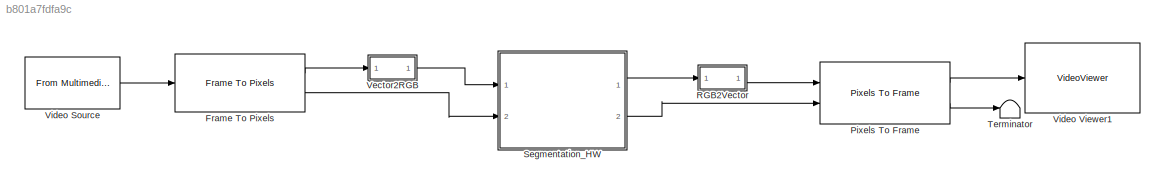
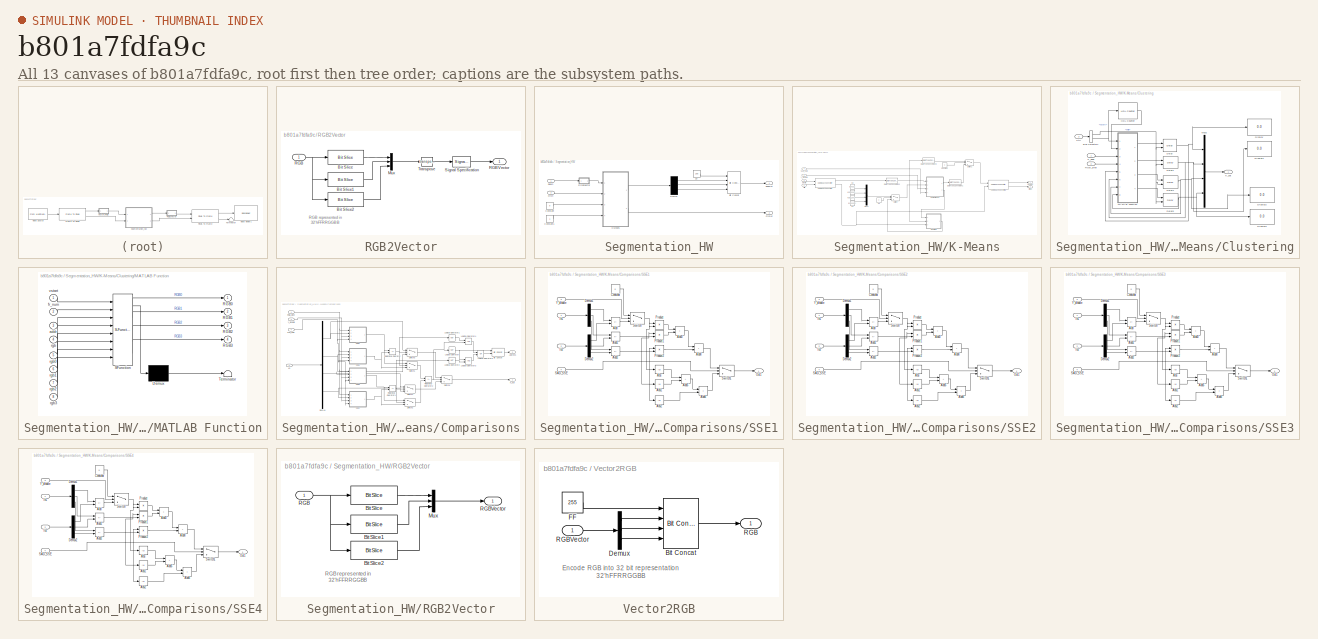
[diagram: thumbnail index - all 13 canvases of the model, root first then tree order]
MODEL slx_b801a7fdfa9c
KIND model
CONFIG AbsTol = auto
CONFIG EnableMultiTasking = off
CONFIG FixedStep = auto
CONFIG InitFcn = Ts = 1e-3;\nTs_240p = 402*324*Ts;\nTs_480p = 525*800*Ts;\n\n
CONFIG MaxStep = auto
CONFIG MinStep = auto
CONFIG RelTol = 1e-3
CONFIG SampleTimeConstraint = Unconstrained
CONFIG SolverName = FixedStepDiscrete
CONFIG StartTime = 0.0
CONFIG StopTime = 1000
BLOCK [Reference] Frame To Pixels  REF=visionhdlio/Frame To Pixels
  Ports = [1, 2]
  SourceBlock = visionhdlio/Frame To Pixels
  SourceProductBaseCode = VT
  SourceType = Frame To Pixels
BLOCK [Reference] Pixels To Frame  REF=visionhdlio/Pixels To Frame
  Ports = [2, 2]
  SourceBlock = visionhdlio/Pixels To Frame
  SourceProductBaseCode = VT
  SourceType = Pixels To Frame
BLOCK [SubSystem] RGB2Vector
  Ports = [1, 1]
  RequestExecContextInheritance = off
  ShowPortLabels = none
BLOCK [Reference] RGB2Vector/Bit Slice  REF=hdlsllib/Logic and Bit
Operations/Bit Slice
  Ports = [1, 1]
  SourceBlock = hdlsllib/Logic and Bit\nOperations/Bit Slice
  SourceProductBaseCode = SL
  SourceType = Bit Slice
BLOCK [Reference] RGB2Vector/Bit Slice1  REF=hdlsllib/Logic and Bit
Operations/Bit Slice
  Ports = [1, 1]
  SourceBlock = hdlsllib/Logic and Bit\nOperations/Bit Slice
  SourceProductBaseCode = SL
  SourceType = Bit Slice
BLOCK [Reference] RGB2Vector/Bit Slice2  REF=hdlsllib/Logic and Bit
Operations/Bit Slice
  Ports = [1, 1]
  SourceBlock = hdlsllib/Logic and Bit\nOperations/Bit Slice
  SourceProductBaseCode = SL
  SourceType = Bit Slice
BLOCK [Mux] RGB2Vector/Mux
  DisplayOption = bar
  Inputs = 3
  Ports = [3, 1]
BLOCK [Inport] RGB2Vector/RGB
BLOCK [Outport] RGB2Vector/RGBVector
  VectorParamsAs1DForOutWhenUnconnected = off
BLOCK [SignalSpecification] RGB2Vector/Signal Specification
  SignalType = real
BLOCK [Math] RGB2Vector/Transpose
  Operator = transpose
  Ports = [1, 1]
  SignedPower = on
BLOCK [SubSystem] Segmentation_HW
  Ports = [2, 2]
  RequestExecContextInheritance = off
  TreatAsAtomicUnit = on
BLOCK [Reference] Segmentation_HW/Bit Concat  REF=hdlsllib/Logic and Bit
Operations/Bit Concat
  Ports = [4, 1]
  SourceBlock = hdlsllib/Logic and Bit\nOperations/Bit Concat
  SourceProductBaseCode = SL
  SourceType = Bit Concat
BLOCK [Constant] Segmentation_HW/Constant
  OutDataTypeStr = uint8
  Value = 0
BLOCK [Constant] Segmentation_HW/Constant1
  OutDataTypeStr = uint8
BLOCK [Demux] Segmentation_HW/Demux
  Outputs = 3
  Ports = [1, 3]
BLOCK [Constant] Segmentation_HW/FF
  OutDataTypeStr = uint8
  SampleTime = -1
  Value = 255
BLOCK [SubSystem] Segmentation_HW/K-Means
  Ports = [4, 2]
  RequestExecContextInheritance = off
  TreatAsAtomicUnit = on
BLOCK [SubSystem] Segmentation_HW/K-Means/Clustering
  Ports = [3, 1]
  RequestExecContextInheritance = off
BLOCK [BusSelector] Segmentation_HW/K-Means/Clustering/Bus Selector1
  OutputSignals = valid,vStart
  Ports = [1, 2]
BLOCK [Inport] Segmentation_HW/K-Means/Clustering/Ctrl
  Port = 3
BLOCK [Delay] Segmentation_HW/K-Means/Clustering/Delay
  DelayLength = 1
  InitialCondition = 0
  InputPortMap = u0,e6
  Ports = [2, 1]
  ShowEnablePort = on
BLOCK [Delay] Segmentation_HW/K-Means/Clustering/Delay1
  DelayLength = 1
  InitialCondition = 0
  InputPortMap = u0,e6
  Ports = [2, 1]
  ShowEnablePort = on
BLOCK [Delay] Segmentation_HW/K-Means/Clustering/Delay4
  DelayLength = 1
  InitialCondition = 0
  InputPortMap = u0,e6
  Ports = [2, 1]
  ShowEnablePort = on
BLOCK [Delay] Segmentation_HW/K-Means/Clustering/Delay5
  DelayLength = 1
  InitialCondition = 0
  InputPortMap = u0,e6
  Ports = [2, 1]
  ShowEnablePort = on
BLOCK [Display] Segmentation_HW/K-Means/Clustering/Display
  Decimation = 1
  Ports = [1]
BLOCK [Display] Segmentation_HW/K-Means/Clustering/Display1
  Decimation = 1
  Ports = [1]
BLOCK [Display] Segmentation_HW/K-Means/Clustering/Display2
  Decimation = 1
  Ports = [1]
BLOCK [Display] Segmentation_HW/K-Means/Clustering/Display3
  Decimation = 1
  Ports = [1]
BLOCK [Reference] Segmentation_HW/K-Means/Clustering/HDL Counter  REF=hdlsllib/Sources/HDL Counter
  Ports = [1, 1]
  SourceBlock = hdlsllib/Sources/HDL Counter
  SourceProductBaseCode = SL
  SourceType = HDL Counter
BLOCK [Inport] Segmentation_HW/K-Means/Clustering/K_addr
BLOCK [Outport] Segmentation_HW/K-Means/Clustering/K_out
  VectorParamsAs1DForOutWhenUnconnected = off
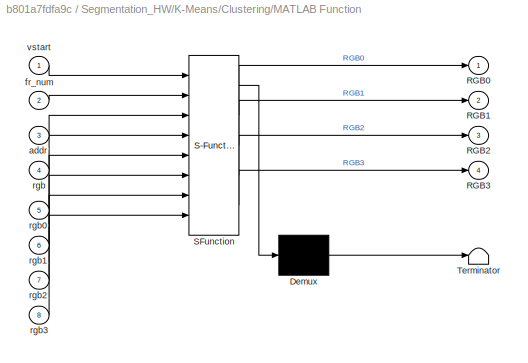
BLOCK [SubSystem] Segmentation_HW/K-Means/Clustering/MATLAB Function
  ErrorFcn = Stateflow.Translate.translate
  PermitHierarchicalResolution = ExplicitOnly
  Ports = [8, 4]
  RequestExecContextInheritance = off
  SFBlockType = MATLAB Function
  TreatAsAtomicUnit = on
BLOCK [Demux] Segmentation_HW/K-Means/Clustering/MATLAB Function/ Demux 
  Outputs = 1
  Ports = [1, 1]
BLOCK [S-Function] Segmentation_HW/K-Means/Clustering/MATLAB Function/ SFunction 
  EnableBusSupport = on
  FunctionName = sf_sfun
  PortCounts = [8 5]
  Ports = [8, 5]
  SFcnIsStateOwnerBlock = off
  SFunctionDeploymentMode = off
  Tag = Stateflow S-Function 1
BLOCK [Terminator] Segmentation_HW/K-Means/Clustering/MATLAB Function/ Terminator 
BLOCK [Outport] Segmentation_HW/K-Means/Clustering/MATLAB Function/RGB0
  VectorParamsAs1DForOutWhenUnconnected = off
BLOCK [Outport] Segmentation_HW/K-Means/Clustering/MATLAB Function/RGB1
  Port = 2
  VectorParamsAs1DForOutWhenUnconnected = off
BLOCK [Outport] Segmentation_HW/K-Means/Clustering/MATLAB Function/RGB2
  Port = 3
  VectorParamsAs1DForOutWhenUnconnected = off
BLOCK [Outport] Segmentation_HW/K-Means/Clustering/MATLAB Function/RGB3
  Port = 4
  VectorParamsAs1DForOutWhenUnconnected = off
BLOCK [Inport] Segmentation_HW/K-Means/Clustering/MATLAB Function/addr
  Port = 3
BLOCK [Inport] Segmentation_HW/K-Means/Clustering/MATLAB Function/fr_num
  Port = 2
BLOCK [Inport] Segmentation_HW/K-Means/Clustering/MATLAB Function/rgb
  Port = 4
BLOCK [Inport] Segmentation_HW/K-Means/Clustering/MATLAB Function/rgb0
  Port = 5
BLOCK [Inport] Segmentation_HW/K-Means/Clustering/MATLAB Function/rgb1
  Port = 6
BLOCK [Inport] Segmentation_HW/K-Means/Clustering/MATLAB Function/rgb2
  Port = 7
BLOCK [Inport] Segmentation_HW/K-Means/Clustering/MATLAB Function/rgb3
  Port = 8
BLOCK [Inport] Segmentation_HW/K-Means/Clustering/MATLAB Function/vstart
BLOCK [Mux] Segmentation_HW/K-Means/Clustering/Mux2
  DisplayOption = bar
  Ports = [4, 1]
BLOCK [Inport] Segmentation_HW/K-Means/Clustering/RGB_pixel
  Port = 2
BLOCK [Reference] Segmentation_HW/K-Means/Color Space Converter  REF=visionhdlconversions/Color Space Converter
  Ports = [2, 2]
  SourceBlock = visionhdlconversions/Color Space Converter
  SourceProductBaseCode = VT
  SourceType = Color Space Converter
BLOCK [Reference] Segmentation_HW/K-Means/Color Space Converter1  REF=visionhdlconversions/Color Space Converter
  Ports = [2, 2]
  SourceBlock = visionhdlconversions/Color Space Converter
  SourceProductBaseCode = VT
  SourceType = Color Space Converter
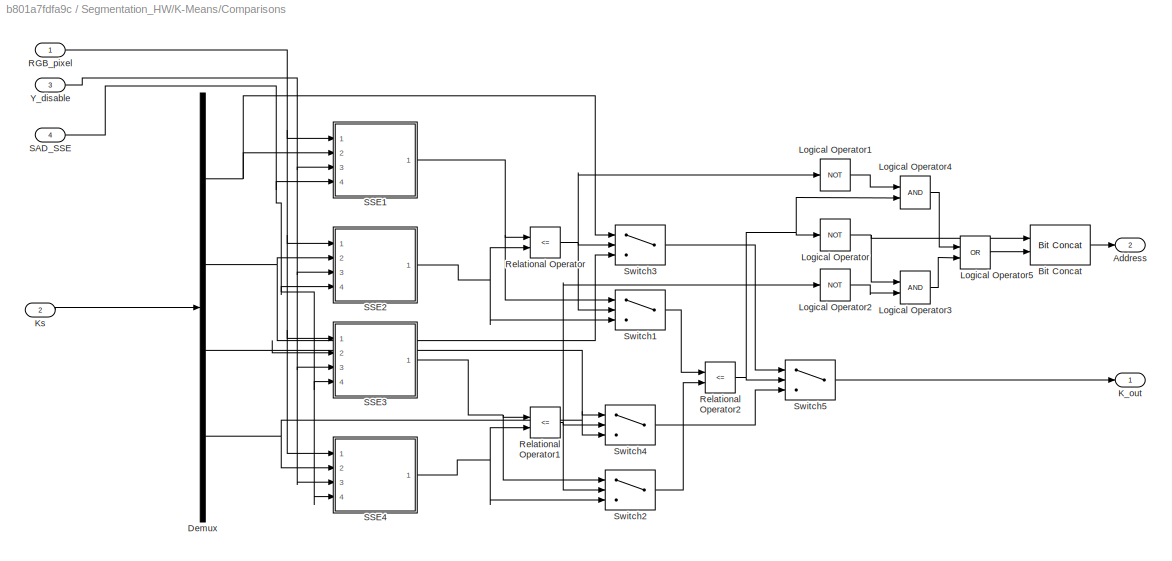
BLOCK [SubSystem] Segmentation_HW/K-Means/Comparisons
  Ports = [4, 2]
  RequestExecContextInheritance = off
BLOCK [Outport] Segmentation_HW/K-Means/Comparisons/Address
  Port = 2
  VectorParamsAs1DForOutWhenUnconnected = off
BLOCK [Reference] Segmentation_HW/K-Means/Comparisons/Bit Concat  REF=hdlsllib/Logic and Bit
Operations/Bit Concat
  Ports = [2, 1]
  SourceBlock = hdlsllib/Logic and Bit\nOperations/Bit Concat
  SourceProductBaseCode = SL
  SourceType = Bit Concat
BLOCK [Demux] Segmentation_HW/K-Means/Comparisons/Demux
  Ports = [1, 4]
BLOCK [Outport] Segmentation_HW/K-Means/Comparisons/K_out
  VectorParamsAs1DForOutWhenUnconnected = off
BLOCK [Inport] Segmentation_HW/K-Means/Comparisons/Ks
  Port = 2
BLOCK [Logic] Segmentation_HW/K-Means/Comparisons/Logical Operator
  AllPortsSameDT = off
  Operator = NOT
  OutDataTypeStr = boolean
  Ports = [1, 1]
BLOCK [Logic] Segmentation_HW/K-Means/Comparisons/Logical Operator1
  AllPortsSameDT = off
  Operator = NOT
  OutDataTypeStr = boolean
  Ports = [1, 1]
BLOCK [Logic] Segmentation_HW/K-Means/Comparisons/Logical Operator2
  AllPortsSameDT = off
  Operator = NOT
  OutDataTypeStr = boolean
  Ports = [1, 1]
BLOCK [Logic] Segmentation_HW/K-Means/Comparisons/Logical Operator3
  AllPortsSameDT = off
  OutDataTypeStr = boolean
  Ports = [2, 1]
BLOCK [Logic] Segmentation_HW/K-Means/Comparisons/Logical Operator4
  AllPortsSameDT = off
  OutDataTypeStr = boolean
  Ports = [2, 1]
BLOCK [Logic] Segmentation_HW/K-Means/Comparisons/Logical Operator5
  AllPortsSameDT = off
  Operator = OR
  OutDataTypeStr = boolean
  Ports = [2, 1]
BLOCK [Inport] Segmentation_HW/K-Means/Comparisons/RGB_pixel
BLOCK [RelationalOperator] Segmentation_HW/K-Means/Comparisons/Relational Operator
  InputSameDT = off
  Operator = <=
  OutDataTypeStr = boolean
  Ports = [2, 1]
BLOCK [RelationalOperator] Segmentation_HW/K-Means/Comparisons/Relational Operator1
  InputSameDT = off
  Operator = <=
  OutDataTypeStr = boolean
  Ports = [2, 1]
BLOCK [RelationalOperator] Segmentation_HW/K-Means/Comparisons/Relational Operator2
  InputSameDT = off
  Operator = <=
  OutDataTypeStr = boolean
  Ports = [2, 1]
BLOCK [Inport] Segmentation_HW/K-Means/Comparisons/SAD_SSE
  Port = 4
BLOCK [SubSystem] Segmentation_HW/K-Means/Comparisons/SSE1
  Ports = [4, 1]
  RequestExecContextInheritance = off
BLOCK [Abs] Segmentation_HW/K-Means/Comparisons/SSE1/Abs
  SaturateOnIntegerOverflow = off
BLOCK [Abs] Segmentation_HW/K-Means/Comparisons/SSE1/Abs1
  SaturateOnIntegerOverflow = off
BLOCK [Abs] Segmentation_HW/K-Means/Comparisons/SSE1/Abs2
  SaturateOnIntegerOverflow = off
BLOCK [Sum] Segmentation_HW/K-Means/Comparisons/SSE1/Add
  IconShape = rectangular
  Inputs = +-
  OutDataTypeStr = Inherit: Inherit via back propagation
  Ports = [2, 1]
BLOCK [Sum] Segmentation_HW/K-Means/Comparisons/SSE1/Add1
  IconShape = rectangular
  Inputs = +-
  OutDataTypeStr = Inherit: Inherit via back propagation
  Ports = [2, 1]
BLOCK [Sum] Segmentation_HW/K-Means/Comparisons/SSE1/Add2
  IconShape = rectangular
  Inputs = +-
  OutDataTypeStr = Inherit: Inherit via back propagation
  Ports = [2, 1]
BLOCK [Sum] Segmentation_HW/K-Means/Comparisons/SSE1/Add3
  IconShape = rectangular
  Ports = [2, 1]
BLOCK [Sum] Segmentation_HW/K-Means/Comparisons/SSE1/Add4
  IconShape = rectangular
  Ports = [2, 1]
BLOCK [Sum] Segmentation_HW/K-Means/Comparisons/SSE1/Add5
  IconShape = rectangular
  Ports = [2, 1]
BLOCK [Sum] Segmentation_HW/K-Means/Comparisons/SSE1/Add6
  IconShape = rectangular
  Ports = [2, 1]
BLOCK [Constant] Segmentation_HW/K-Means/Comparisons/SSE1/Constant
  OutDataTypeStr = fixdt(1,18,8)
  Value = 0
BLOCK [Demux] Segmentation_HW/K-Means/Comparisons/SSE1/Demux1
  Outputs = 3
  Ports = [1, 3]
BLOCK [Demux] Segmentation_HW/K-Means/Comparisons/SSE1/Demux2
  Outputs = 3
  Ports = [1, 3]
BLOCK [Inport] Segmentation_HW/K-Means/Comparisons/SSE1/In1
BLOCK [Inport] Segmentation_HW/K-Means/Comparisons/SSE1/In2
  Port = 2
BLOCK [Outport] Segmentation_HW/K-Means/Comparisons/SSE1/Out1
  VectorParamsAs1DForOutWhenUnconnected = off
BLOCK [Product] Segmentation_HW/K-Means/Comparisons/SSE1/Product
  Ports = [2, 1]
BLOCK [Product] Segmentation_HW/K-Means/Comparisons/SSE1/Product1
  Ports = [2, 1]
BLOCK [Product] Segmentation_HW/K-Means/Comparisons/SSE1/Product2
  Ports = [2, 1]
BLOCK [Inport] Segmentation_HW/K-Means/Comparisons/SSE1/SAD_SSE
  Port = 4
BLOCK [Switch] Segmentation_HW/K-Means/Comparisons/SSE1/Switch
  InputSameDT = off
  SaturateOnIntegerOverflow = off
  Threshold = 0.5
BLOCK [Switch] Segmentation_HW/K-Means/Comparisons/SSE1/Switch1
  InputSameDT = off
  SaturateOnIntegerOverflow = off
  Threshold = 0.5
BLOCK [Inport] Segmentation_HW/K-Means/Comparisons/SSE1/Y_disable
  Port = 3
BLOCK [SubSystem] Segmentation_HW/K-Means/Comparisons/SSE2
  Ports = [4, 1]
  RequestExecContextInheritance = off
BLOCK [Abs] Segmentation_HW/K-Means/Comparisons/SSE2/Abs
  SaturateOnIntegerOverflow = off
BLOCK [Abs] Segmentation_HW/K-Means/Comparisons/SSE2/Abs1
  SaturateOnIntegerOverflow = off
BLOCK [Abs] Segmentation_HW/K-Means/Comparisons/SSE2/Abs2
  SaturateOnIntegerOverflow = off
BLOCK [Sum] Segmentation_HW/K-Means/Comparisons/SSE2/Add
  IconShape = rectangular
  Inputs = +-
  OutDataTypeStr = Inherit: Inherit via back propagation
  Ports = [2, 1]
BLOCK [Sum] Segmentation_HW/K-Means/Comparisons/SSE2/Add1
  IconShape = rectangular
  Inputs = +-
  OutDataTypeStr = Inherit: Inherit via back propagation
  Ports = [2, 1]
BLOCK [Sum] Segmentation_HW/K-Means/Comparisons/SSE2/Add2
  IconShape = rectangular
  Inputs = +-
  OutDataTypeStr = Inherit: Inherit via back propagation
  Ports = [2, 1]
BLOCK [Sum] Segmentation_HW/K-Means/Comparisons/SSE2/Add3
  IconShape = rectangular
  Ports = [2, 1]
BLOCK [Sum] Segmentation_HW/K-Means/Comparisons/SSE2/Add4
  IconShape = rectangular
  Ports = [2, 1]
BLOCK [Sum] Segmentation_HW/K-Means/Comparisons/SSE2/Add5
  IconShape = rectangular
  Ports = [2, 1]
BLOCK [Sum] Segmentation_HW/K-Means/Comparisons/SSE2/Add6
  IconShape = rectangular
  Ports = [2, 1]
BLOCK [Constant] Segmentation_HW/K-Means/Comparisons/SSE2/Constant
  OutDataTypeStr = fixdt(1,18,8)
  Value = 0
BLOCK [Demux] Segmentation_HW/K-Means/Comparisons/SSE2/Demux1
  Outputs = 3
  Ports = [1, 3]
BLOCK [Demux] Segmentation_HW/K-Means/Comparisons/SSE2/Demux2
  Outputs = 3
  Ports = [1, 3]
BLOCK [Inport] Segmentation_HW/K-Means/Comparisons/SSE2/In1
BLOCK [Inport] Segmentation_HW/K-Means/Comparisons/SSE2/In2
  Port = 2
BLOCK [Outport] Segmentation_HW/K-Means/Comparisons/SSE2/Out1
  VectorParamsAs1DForOutWhenUnconnected = off
BLOCK [Product] Segmentation_HW/K-Means/Comparisons/SSE2/Product
  Ports = [2, 1]
BLOCK [Product] Segmentation_HW/K-Means/Comparisons/SSE2/Product1
  Ports = [2, 1]
BLOCK [Product] Segmentation_HW/K-Means/Comparisons/SSE2/Product2
  Ports = [2, 1]
BLOCK [Inport] Segmentation_HW/K-Means/Comparisons/SSE2/SAD_SSE
  Port = 4
BLOCK [Switch] Segmentation_HW/K-Means/Comparisons/SSE2/Switch
  InputSameDT = off
  SaturateOnIntegerOverflow = off
  Threshold = 0.5
BLOCK [Switch] Segmentation_HW/K-Means/Comparisons/SSE2/Switch1
  InputSameDT = off
  SaturateOnIntegerOverflow = off
  Threshold = 0.5
BLOCK [Inport] Segmentation_HW/K-Means/Comparisons/SSE2/Y_disable
  Port = 3
BLOCK [SubSystem] Segmentation_HW/K-Means/Comparisons/SSE3
  Ports = [4, 1]
  RequestExecContextInheritance = off
BLOCK [Abs] Segmentation_HW/K-Means/Comparisons/SSE3/Abs
  SaturateOnIntegerOverflow = off
BLOCK [Abs] Segmentation_HW/K-Means/Comparisons/SSE3/Abs1
  SaturateOnIntegerOverflow = off
BLOCK [Abs] Segmentation_HW/K-Means/Comparisons/SSE3/Abs2
  SaturateOnIntegerOverflow = off
BLOCK [Sum] Segmentation_HW/K-Means/Comparisons/SSE3/Add
  IconShape = rectangular
  Inputs = +-
  OutDataTypeStr = Inherit: Inherit via back propagation
  Ports = [2, 1]
BLOCK [Sum] Segmentation_HW/K-Means/Comparisons/SSE3/Add1
  IconShape = rectangular
  Inputs = +-
  OutDataTypeStr = Inherit: Inherit via back propagation
  Ports = [2, 1]
BLOCK [Sum] Segmentation_HW/K-Means/Comparisons/SSE3/Add2
  IconShape = rectangular
  Inputs = +-
  OutDataTypeStr = Inherit: Inherit via back propagation
  Ports = [2, 1]
BLOCK [Sum] Segmentation_HW/K-Means/Comparisons/SSE3/Add3
  IconShape = rectangular
  Ports = [2, 1]
BLOCK [Sum] Segmentation_HW/K-Means/Comparisons/SSE3/Add4
  IconShape = rectangular
  Ports = [2, 1]
BLOCK [Sum] Segmentation_HW/K-Means/Comparisons/SSE3/Add5
  IconShape = rectangular
  Ports = [2, 1]
BLOCK [Sum] Segmentation_HW/K-Means/Comparisons/SSE3/Add6
  IconShape = rectangular
  Ports = [2, 1]
BLOCK [Constant] Segmentation_HW/K-Means/Comparisons/SSE3/Constant
  OutDataTypeStr = fixdt(1,18,8)
  Value = 0
BLOCK [Demux] Segmentation_HW/K-Means/Comparisons/SSE3/Demux1
  Outputs = 3
  Ports = [1, 3]
BLOCK [Demux] Segmentation_HW/K-Means/Comparisons/SSE3/Demux2
  Outputs = 3
  Ports = [1, 3]
BLOCK [Inport] Segmentation_HW/K-Means/Comparisons/SSE3/In1
BLOCK [Inport] Segmentation_HW/K-Means/Comparisons/SSE3/In2
  Port = 2
BLOCK [Outport] Segmentation_HW/K-Means/Comparisons/SSE3/Out1
  VectorParamsAs1DForOutWhenUnconnected = off
BLOCK [Product] Segmentation_HW/K-Means/Comparisons/SSE3/Product
  Ports = [2, 1]
BLOCK [Product] Segmentation_HW/K-Means/Comparisons/SSE3/Product1
  Ports = [2, 1]
BLOCK [Product] Segmentation_HW/K-Means/Comparisons/SSE3/Product2
  Ports = [2, 1]
BLOCK [Inport] Segmentation_HW/K-Means/Comparisons/SSE3/SAD_SSE
  Port = 4
BLOCK [Switch] Segmentation_HW/K-Means/Comparisons/SSE3/Switch
  InputSameDT = off
  SaturateOnIntegerOverflow = off
  Threshold = 0.5
BLOCK [Switch] Segmentation_HW/K-Means/Comparisons/SSE3/Switch1
  InputSameDT = off
  SaturateOnIntegerOverflow = off
  Threshold = 0.5
BLOCK [Inport] Segmentation_HW/K-Means/Comparisons/SSE3/Y_disable
  Port = 3
BLOCK [SubSystem] Segmentation_HW/K-Means/Comparisons/SSE4
  Ports = [4, 1]
  RequestExecContextInheritance = off
BLOCK [Abs] Segmentation_HW/K-Means/Comparisons/SSE4/Abs
  SaturateOnIntegerOverflow = off
BLOCK [Abs] Segmentation_HW/K-Means/Comparisons/SSE4/Abs1
  SaturateOnIntegerOverflow = off
BLOCK [Abs] Segmentation_HW/K-Means/Comparisons/SSE4/Abs2
  SaturateOnIntegerOverflow = off
BLOCK [Sum] Segmentation_HW/K-Means/Comparisons/SSE4/Add
  IconShape = rectangular
  Inputs = +-
  OutDataTypeStr = Inherit: Inherit via back propagation
  Ports = [2, 1]
BLOCK [Sum] Segmentation_HW/K-Means/Comparisons/SSE4/Add1
  IconShape = rectangular
  Inputs = +-
  OutDataTypeStr = Inherit: Inherit via back propagation
  Ports = [2, 1]
BLOCK [Sum] Segmentation_HW/K-Means/Comparisons/SSE4/Add2
  IconShape = rectangular
  Inputs = +-
  OutDataTypeStr = Inherit: Inherit via back propagation
  Ports = [2, 1]
BLOCK [Sum] Segmentation_HW/K-Means/Comparisons/SSE4/Add3
  IconShape = rectangular
  Ports = [2, 1]
BLOCK [Sum] Segmentation_HW/K-Means/Comparisons/SSE4/Add4
  IconShape = rectangular
  Ports = [2, 1]
BLOCK [Sum] Segmentation_HW/K-Means/Comparisons/SSE4/Add5
  IconShape = rectangular
  Ports = [2, 1]
BLOCK [Sum] Segmentation_HW/K-Means/Comparisons/SSE4/Add6
  IconShape = rectangular
  Ports = [2, 1]
BLOCK [Constant] Segmentation_HW/K-Means/Comparisons/SSE4/Constant
  OutDataTypeStr = fixdt(1,18,8)
  Value = 0
BLOCK [Demux] Segmentation_HW/K-Means/Comparisons/SSE4/Demux1
  Outputs = 3
  Ports = [1, 3]
BLOCK [Demux] Segmentation_HW/K-Means/Comparisons/SSE4/Demux2
  Outputs = 3
  Ports = [1, 3]
BLOCK [Inport] Segmentation_HW/K-Means/Comparisons/SSE4/In1
BLOCK [Inport] Segmentation_HW/K-Means/Comparisons/SSE4/In2
  Port = 2
BLOCK [Outport] Segmentation_HW/K-Means/Comparisons/SSE4/Out1
  VectorParamsAs1DForOutWhenUnconnected = off
BLOCK [Product] Segmentation_HW/K-Means/Comparisons/SSE4/Product
  Ports = [2, 1]
BLOCK [Product] Segmentation_HW/K-Means/Comparisons/SSE4/Product1
  Ports = [2, 1]
BLOCK [Product] Segmentation_HW/K-Means/Comparisons/SSE4/Product2
  Ports = [2, 1]
BLOCK [Inport] Segmentation_HW/K-Means/Comparisons/SSE4/SAD_SSE
  Port = 4
BLOCK [Switch] Segmentation_HW/K-Means/Comparisons/SSE4/Switch
  InputSameDT = off
  SaturateOnIntegerOverflow = off
  Threshold = 0.5
BLOCK [Switch] Segmentation_HW/K-Means/Comparisons/SSE4/Switch1
  InputSameDT = off
  SaturateOnIntegerOverflow = off
  Threshold = 0.5
BLOCK [Inport] Segmentation_HW/K-Means/Comparisons/SSE4/Y_disable
  Port = 3
BLOCK [Switch] Segmentation_HW/K-Means/Comparisons/Switch1
  InputSameDT = off
  SaturateOnIntegerOverflow = off
  Threshold = 0.5
BLOCK [Switch] Segmentation_HW/K-Means/Comparisons/Switch2
  InputSameDT = off
  SaturateOnIntegerOverflow = off
  Threshold = 0.5
BLOCK [Switch] Segmentation_HW/K-Means/Comparisons/Switch3
  InputSameDT = off
  SaturateOnIntegerOverflow = off
  Threshold = 0.5
BLOCK [Switch] Segmentation_HW/K-Means/Comparisons/Switch4
  InputSameDT = off
  SaturateOnIntegerOverflow = off
  Threshold = 0.5
BLOCK [Switch] Segmentation_HW/K-Means/Comparisons/Switch5
  InputSameDT = off
  SaturateOnIntegerOverflow = off
  Threshold = 0.5
BLOCK [Inport] Segmentation_HW/K-Means/Comparisons/Y_disable
  Port = 3
BLOCK [Constant] Segmentation_HW/K-Means/Constant
  OutDataTypeStr = uint8
  Value = 0
BLOCK [DataTypeConversion] Segmentation_HW/K-Means/Data Type Conversion1
  OutDataTypeStr = uint8
  RndMeth = Nearest
  SaturateOnIntegerOverflow = off
BLOCK [DataTypeConversion] Segmentation_HW/K-Means/Data Type Conversion2
  OutDataTypeStr = fixdt(1,18,8)
  RndMeth = Nearest
  SaturateOnIntegerOverflow = off
BLOCK [DataTypeConversion] Segmentation_HW/K-Means/Data Type Conversion3
  OutDataTypeStr = uint8
  RndMeth = Nearest
  SaturateOnIntegerOverflow = off
BLOCK [Constant] Segmentation_HW/K-Means/K0
  OutDataTypeStr = fixdt(1,18,8)
  Value = [255,0,0]
BLOCK [Constant] Segmentation_HW/K-Means/K1
  OutDataTypeStr = fixdt(1,18,8)
  Value = [0,255,0]
BLOCK [Constant] Segmentation_HW/K-Means/K2
  OutDataTypeStr = uint8
  Value = 0
BLOCK [Constant] Segmentation_HW/K-Means/K3
  OutDataTypeStr = fixdt(1,18,8)
  Value = [0,0,255]
BLOCK [Constant] Segmentation_HW/K-Means/K4
  OutDataTypeStr = fixdt(1,18,8)
  Value = [0,255,255]
BLOCK [Mux] Segmentation_HW/K-Means/Mux2
  DisplayOption = bar
  Ports = [4, 1]
BLOCK [Inport] Segmentation_HW/K-Means/SAD_SSE
  Port = 4
BLOCK [Switch] Segmentation_HW/K-Means/Switch
  InputSameDT = off
  SaturateOnIntegerOverflow = off
  Threshold = 0.5
BLOCK [Switch] Segmentation_HW/K-Means/Switch1
  InputSameDT = off
  SaturateOnIntegerOverflow = off
  Threshold = 0.5
BLOCK [Inport] Segmentation_HW/K-Means/Y_disable
  Port = 3
BLOCK [Inport] Segmentation_HW/K-Means/ctrlIn
  Port = 2
BLOCK [Outport] Segmentation_HW/K-Means/ctrlOut
  Port = 2
  VectorParamsAs1DForOutWhenUnconnected = off
BLOCK [Inport] Segmentation_HW/K-Means/pixelIn
BLOCK [Outport] Segmentation_HW/K-Means/pixelOut
  VectorParamsAs1DForOutWhenUnconnected = off
BLOCK [SubSystem] Segmentation_HW/RGB2Vector
  Ports = [1, 1]
  RequestExecContextInheritance = off
  ShowPortLabels = none
BLOCK [Reference] Segmentation_HW/RGB2Vector/Bit Slice  REF=hdlsllib/Logic and Bit
Operations/Bit Slice
  Ports = [1, 1]
  SourceBlock = hdlsllib/Logic and Bit\nOperations/Bit Slice
  SourceProductBaseCode = SL
  SourceType = Bit Slice
BLOCK [Reference] Segmentation_HW/RGB2Vector/Bit Slice1  REF=hdlsllib/Logic and Bit
Operations/Bit Slice
  Ports = [1, 1]
  SourceBlock = hdlsllib/Logic and Bit\nOperations/Bit Slice
  SourceProductBaseCode = SL
  SourceType = Bit Slice
BLOCK [Reference] Segmentation_HW/RGB2Vector/Bit Slice2  REF=hdlsllib/Logic and Bit
Operations/Bit Slice
  Ports = [1, 1]
  SourceBlock = hdlsllib/Logic and Bit\nOperations/Bit Slice
  SourceProductBaseCode = SL
  SourceType = Bit Slice
BLOCK [Mux] Segmentation_HW/RGB2Vector/Mux
  DisplayOption = bar
  Inputs = 3
  Ports = [3, 1]
BLOCK [Inport] Segmentation_HW/RGB2Vector/RGB
BLOCK [Outport] Segmentation_HW/RGB2Vector/RGBVector
  VectorParamsAs1DForOutWhenUnconnected = off
BLOCK [Inport] Segmentation_HW/ctrlIn
  Port = 2
BLOCK [Outport] Segmentation_HW/ctrlOut
  Port = 2
  VectorParamsAs1DForOutWhenUnconnected = off
BLOCK [Inport] Segmentation_HW/pixelIn
BLOCK [Outport] Segmentation_HW/pixelOut
  VectorParamsAs1DForOutWhenUnconnected = off
BLOCK [Terminator] Terminator
BLOCK [SubSystem] Vector2RGB
  Ports = [1, 1]
  RequestExecContextInheritance = off
  ShowPortLabels = none
BLOCK [Reference] Vector2RGB/Bit Concat  REF=hdlsllib/Logic and Bit
Operations/Bit Concat
  Ports = [4, 1]
  SourceBlock = hdlsllib/Logic and Bit\nOperations/Bit Concat
  SourceProductBaseCode = SL
  SourceType = Bit Concat
BLOCK [Demux] Vector2RGB/Demux
  Outputs = 3
  Ports = [1, 3]
BLOCK [Constant] Vector2RGB/FF
  OutDataTypeStr = uint8
  SampleTime = -1
  Value = 255
BLOCK [Outport] Vector2RGB/RGB
  VectorParamsAs1DForOutWhenUnconnected = off
BLOCK [Inport] Vector2RGB/RGBVector
BLOCK [Reference] Video Source  REF=dspvision/From Multimedia File
  Ports = [0, 1]
  SourceBlock = dspvision/From Multimedia File
  SourceProductBaseCode = DS,HW,VP
  SourceType = From Multimedia File
BLOCK [VideoViewer] Video Viewer1
  FigPos = [838 665 498 402]
  Ports = [1]
  ScopeSpecificationString = vipscopes.VideoViewerScopeCfg('CurrentConfiguration', extmgr.ConfigurationSet(extmgr.Configuration('Core','General UI',true),extmgr.Configuration('Core','Source UI',true),extmgr.Configuration('Sources','WiredSimulink',true),extmgr.Configuration('Sources','Streaming',false),extmgr.Configuration('Sources','SimulinkEvent',false),extmgr.Configuration('Sources','Workspace',false),extmgr.Configuration('...<+957ch>
  colormapValue = gray(256)
ANNOTATION RGB2Vector: RGB represented in 32'hFFRRGGBB
ANNOTATION Segmentation_HW/RGB2Vector: RGB represented in 32'hFFRRGGBB
ANNOTATION Vector2RGB: Encode RGB into 32 bit representation 32'hFFRRGGBB
LINE Frame To Pixels:1 -> Vector2RGB:1
LINE Frame To Pixels:2 -> Segmentation_HW:2
LINE Pixels To Frame:1 -> Video Viewer1:1
LINE Pixels To Frame:2 -> Terminator:1
LINE RGB2Vector/Bit Slice1:1 -> RGB2Vector/Mux:2
LINE RGB2Vector/Bit Slice2:1 -> RGB2Vector/Mux:3
LINE RGB2Vector/Bit Slice:1 -> RGB2Vector/Mux:1
LINE RGB2Vector/Mux:1 -> RGB2Vector/Transpose:1
NET RGB2Vector/RGB:1 -> RGB2Vector/Bit Slice1:1, RGB2Vector/Bit Slice2:1, RGB2Vector/Bit Slice:1
LINE RGB2Vector/Signal Specification:1 -> RGB2Vector/RGBVector:1
LINE RGB2Vector/Transpose:1 -> RGB2Vector/Signal Specification:1
LINE RGB2Vector:1 -> Pixels To Frame:1
LINE Segmentation_HW/Bit Concat:1 -> Segmentation_HW/pixelOut:1
LINE Segmentation_HW/Constant1:1 -> Segmentation_HW/K-Means:4
LINE Segmentation_HW/Constant:1 -> Segmentation_HW/K-Means:3
LINE Segmentation_HW/Demux:1 -> Segmentation_HW/Bit Concat:2
LINE Segmentation_HW/Demux:2 -> Segmentation_HW/Bit Concat:3
LINE Segmentation_HW/Demux:3 -> Segmentation_HW/Bit Concat:4
LINE Segmentation_HW/FF:1 -> Segmentation_HW/Bit Concat:1
NET Segmentation_HW/K-Means/Clustering/Bus Selector1:1 -> Segmentation_HW/K-Means/Clustering/Delay1:2, Segmentation_HW/K-Means/Clustering/Delay4:2, Segmentation_HW/K-Means/Clustering/Delay5:2, Segmentation_HW/K-Means/Clustering/Delay:2
NET Segmentation_HW/K-Means/Clustering/Bus Selector1:2 -> Segmentation_HW/K-Means/Clustering/HDL Counter:1, Segmentation_HW/K-Means/Clustering/MATLAB Function:1
LINE Segmentation_HW/K-Means/Clustering/Ctrl:1 -> Segmentation_HW/K-Means/Clustering/Bus Selector1:1
NET Segmentation_HW/K-Means/Clustering/Delay1:1 -> Segmentation_HW/K-Means/Clustering/Display1:1, Segmentation_HW/K-Means/Clustering/MATLAB Function:6, Segmentation_HW/K-Means/Clustering/Mux2:2
NET Segmentation_HW/K-Means/Clustering/Delay4:1 -> Segmentation_HW/K-Means/Clustering/Display2:1, Segmentation_HW/K-Means/Clustering/MATLAB Function:7, Segmentation_HW/K-Means/Clustering/Mux2:3
NET Segmentation_HW/K-Means/Clustering/Delay5:1 -> Segmentation_HW/K-Means/Clustering/Display3:1, Segmentation_HW/K-Means/Clustering/MATLAB Function:8, Segmentation_HW/K-Means/Clustering/Mux2:4
NET Segmentation_HW/K-Means/Clustering/Delay:1 -> Segmentation_HW/K-Means/Clustering/Display:1, Segmentation_HW/K-Means/Clustering/MATLAB Function:5, Segmentation_HW/K-Means/Clustering/Mux2:1
LINE Segmentation_HW/K-Means/Clustering/HDL Counter:1 -> Segmentation_HW/K-Means/Clustering/MATLAB Function:2
LINE Segmentation_HW/K-Means/Clustering/K_addr:1 -> Segmentation_HW/K-Means/Clustering/MATLAB Function:3
LINE Segmentation_HW/K-Means/Clustering/MATLAB Function:1 -> Segmentation_HW/K-Means/Clustering/Delay:1
LINE Segmentation_HW/K-Means/Clustering/MATLAB Function:2 -> Segmentation_HW/K-Means/Clustering/Delay1:1
LINE Segmentation_HW/K-Means/Clustering/MATLAB Function:3 -> Segmentation_HW/K-Means/Clustering/Delay4:1
LINE Segmentation_HW/K-Means/Clustering/MATLAB Function:4 -> Segmentation_HW/K-Means/Clustering/Delay5:1
LINE Segmentation_HW/K-Means/Clustering/Mux2:1 -> Segmentation_HW/K-Means/Clustering/K_out:1
LINE Segmentation_HW/K-Means/Clustering/RGB_pixel:1 -> Segmentation_HW/K-Means/Clustering/MATLAB Function:4
LINE Segmentation_HW/K-Means/Clustering:1 -> Segmentation_HW/K-Means/Switch:3
LINE Segmentation_HW/K-Means/Color Space Converter1:1 -> Segmentation_HW/K-Means/pixelOut:1
LINE Segmentation_HW/K-Means/Color Space Converter1:2 -> Segmentation_HW/K-Means/ctrlOut:1
LINE Segmentation_HW/K-Means/Color Space Converter:1 -> Segmentation_HW/K-Means/Data Type Conversion2:1
NET Segmentation_HW/K-Means/Color Space Converter:2 -> Segmentation_HW/K-Means/Clustering:3, Segmentation_HW/K-Means/Color Space Converter1:2
LINE Segmentation_HW/K-Means/Comparisons/Bit Concat:1 -> Segmentation_HW/K-Means/Comparisons/Address:1
NET Segmentation_HW/K-Means/Comparisons/Demux:1 -> Segmentation_HW/K-Means/Comparisons/SSE1:2, Segmentation_HW/K-Means/Comparisons/Switch3:1
NET Segmentation_HW/K-Means/Comparisons/Demux:2 -> Segmentation_HW/K-Means/Comparisons/SSE2:2, Segmentation_HW/K-Means/Comparisons/Switch3:3
NET Segmentation_HW/K-Means/Comparisons/Demux:3 -> Segmentation_HW/K-Means/Comparisons/SSE3:2, Segmentation_HW/K-Means/Comparisons/Switch4:1
NET Segmentation_HW/K-Means/Comparisons/Demux:4 -> Segmentation_HW/K-Means/Comparisons/SSE4:2, Segmentation_HW/K-Means/Comparisons/Switch4:3
LINE Segmentation_HW/K-Means/Comparisons/Ks:1 -> Segmentation_HW/K-Means/Comparisons/Demux:1
LINE Segmentation_HW/K-Means/Comparisons/Logical Operator1:1 -> Segmentation_HW/K-Means/Comparisons/Logical Operator4:1
LINE Segmentation_HW/K-Means/Comparisons/Logical Operator2:1 -> Segmentation_HW/K-Means/Comparisons/Logical Operator3:2
LINE Segmentation_HW/K-Means/Comparisons/Logical Operator3:1 -> Segmentation_HW/K-Means/Comparisons/Logical Operator5:2
LINE Segmentation_HW/K-Means/Comparisons/Logical Operator4:1 -> Segmentation_HW/K-Means/Comparisons/Logical Operator5:1
LINE Segmentation_HW/K-Means/Comparisons/Logical Operator5:1 -> Segmentation_HW/K-Means/Comparisons/Bit Concat:2
NET Segmentation_HW/K-Means/Comparisons/Logical Operator:1 -> Segmentation_HW/K-Means/Comparisons/Bit Concat:1, Segmentation_HW/K-Means/Comparisons/Logical Operator3:1
NET Segmentation_HW/K-Means/Comparisons/RGB_pixel:1 -> Segmentation_HW/K-Means/Comparisons/SSE1:1, Segmentation_HW/K-Means/Comparisons/SSE2:1, Segmentation_HW/K-Means/Comparisons/SSE3:1, Segmentation_HW/K-Means/Comparisons/SSE4:1
NET Segmentation_HW/K-Means/Comparisons/Relational Operator1:1 -> Segmentation_HW/K-Means/Comparisons/Logical Operator2:1, Segmentation_HW/K-Means/Comparisons/Switch2:2, Segmentation_HW/K-Means/Comparisons/Switch4:2
NET Segmentation_HW/K-Means/Comparisons/Relational Operator2:1 -> Segmentation_HW/K-Means/Comparisons/Logical Operator4:2, Segmentation_HW/K-Means/Comparisons/Logical Operator:1, Segmentation_HW/K-Means/Comparisons/Switch5:2
NET Segmentation_HW/K-Means/Comparisons/Relational Operator:1 -> Segmentation_HW/K-Means/Comparisons/Logical Operator1:1, Segmentation_HW/K-Means/Comparisons/Switch1:2, Segmentation_HW/K-Means/Comparisons/Switch3:2
NET Segmentation_HW/K-Means/Comparisons/SAD_SSE:1 -> Segmentation_HW/K-Means/Comparisons/SSE1:4, Segmentation_HW/K-Means/Comparisons/SSE2:4, Segmentation_HW/K-Means/Comparisons/SSE3:4, Segmentation_HW/K-Means/Comparisons/SSE4:4
LINE Segmentation_HW/K-Means/Comparisons/SSE1/Abs1:1 -> Segmentation_HW/K-Means/Comparisons/SSE1/Add5:2
LINE Segmentation_HW/K-Means/Comparisons/SSE1/Abs2:1 -> Segmentation_HW/K-Means/Comparisons/SSE1/Add6:2
LINE Segmentation_HW/K-Means/Comparisons/SSE1/Abs:1 -> Segmentation_HW/K-Means/Comparisons/SSE1/Add5:1
NET Segmentation_HW/K-Means/Comparisons/SSE1/Add1:1 -> Segmentation_HW/K-Means/Comparisons/SSE1/Abs1:1, Segmentation_HW/K-Means/Comparisons/SSE1/Product1:1, Segmentation_HW/K-Means/Comparisons/SSE1/Product1:2
NET Segmentation_HW/K-Means/Comparisons/SSE1/Add2:1 -> Segmentation_HW/K-Means/Comparisons/SSE1/Abs2:1, Segmentation_HW/K-Means/Comparisons/SSE1/Product2:1, Segmentation_HW/K-Means/Comparisons/SSE1/Product2:2
LINE Segmentation_HW/K-Means/Comparisons/SSE1/Add3:1 -> Segmentation_HW/K-Means/Comparisons/SSE1/Add4:1
LINE Segmentation_HW/K-Means/Comparisons/SSE1/Add4:1 -> Segmentation_HW/K-Means/Comparisons/SSE1/Switch1:1
LINE Segmentation_HW/K-Means/Comparisons/SSE1/Add5:1 -> Segmentation_HW/K-Means/Comparisons/SSE1/Add6:1
LINE Segmentation_HW/K-Means/Comparisons/SSE1/Add6:1 -> Segmentation_HW/K-Means/Comparisons/SSE1/Switch1:3
LINE Segmentation_HW/K-Means/Comparisons/SSE1/Add:1 -> Segmentation_HW/K-Means/Comparisons/SSE1/Switch:3
LINE Segmentation_HW/K-Means/Comparisons/SSE1/Constant:1 -> Segmentation_HW/K-Means/Comparisons/SSE1/Switch:1
LINE Segmentation_HW/K-Means/Comparisons/SSE1/Demux1:1 -> Segmentation_HW/K-Means/Comparisons/SSE1/Add:1
LINE Segmentation_HW/K-Means/Comparisons/SSE1/Demux1:2 -> Segmentation_HW/K-Means/Comparisons/SSE1/Add1:1
LINE Segmentation_HW/K-Means/Comparisons/SSE1/Demux1:3 -> Segmentation_HW/K-Means/Comparisons/SSE1/Add2:1
LINE Segmentation_HW/K-Means/Comparisons/SSE1/Demux2:1 -> Segmentation_HW/K-Means/Comparisons/SSE1/Add:2
LINE Segmentation_HW/K-Means/Comparisons/SSE1/Demux2:2 -> Segmentation_HW/K-Means/Comparisons/SSE1/Add1:2
LINE Segmentation_HW/K-Means/Comparisons/SSE1/Demux2:3 -> Segmentation_HW/K-Means/Comparisons/SSE1/Add2:2
LINE Segmentation_HW/K-Means/Comparisons/SSE1/In1:1 -> Segmentation_HW/K-Means/Comparisons/SSE1/Demux1:1
LINE Segmentation_HW/K-Means/Comparisons/SSE1/In2:1 -> Segmentation_HW/K-Means/Comparisons/SSE1/Demux2:1
LINE Segmentation_HW/K-Means/Comparisons/SSE1/Product1:1 -> Segmentation_HW/K-Means/Comparisons/SSE1/Add3:2
LINE Segmentation_HW/K-Means/Comparisons/SSE1/Product2:1 -> Segmentation_HW/K-Means/Comparisons/SSE1/Add4:2
LINE Segmentation_HW/K-Means/Comparisons/SSE1/Product:1 -> Segmentation_HW/K-Means/Comparisons/SSE1/Add3:1
LINE Segmentation_HW/K-Means/Comparisons/SSE1/SAD_SSE:1 -> Segmentation_HW/K-Means/Comparisons/SSE1/Switch1:2
LINE Segmentation_HW/K-Means/Comparisons/SSE1/Switch1:1 -> Segmentation_HW/K-Means/Comparisons/SSE1/Out1:1
NET Segmentation_HW/K-Means/Comparisons/SSE1/Switch:1 -> Segmentation_HW/K-Means/Comparisons/SSE1/Abs:1, Segmentation_HW/K-Means/Comparisons/SSE1/Product:1, Segmentation_HW/K-Means/Comparisons/SSE1/Product:2
LINE Segmentation_HW/K-Means/Comparisons/SSE1/Y_disable:1 -> Segmentation_HW/K-Means/Comparisons/SSE1/Switch:2
NET Segmentation_HW/K-Means/Comparisons/SSE1:1 -> Segmentation_HW/K-Means/Comparisons/Relational Operator:1, Segmentation_HW/K-Means/Comparisons/Switch1:1
LINE Segmentation_HW/K-Means/Comparisons/SSE2/Abs1:1 -> Segmentation_HW/K-Means/Comparisons/SSE2/Add5:2
LINE Segmentation_HW/K-Means/Comparisons/SSE2/Abs2:1 -> Segmentation_HW/K-Means/Comparisons/SSE2/Add6:2
LINE Segmentation_HW/K-Means/Comparisons/SSE2/Abs:1 -> Segmentation_HW/K-Means/Comparisons/SSE2/Add5:1
NET Segmentation_HW/K-Means/Comparisons/SSE2/Add1:1 -> Segmentation_HW/K-Means/Comparisons/SSE2/Abs1:1, Segmentation_HW/K-Means/Comparisons/SSE2/Product1:1, Segmentation_HW/K-Means/Comparisons/SSE2/Product1:2
NET Segmentation_HW/K-Means/Comparisons/SSE2/Add2:1 -> Segmentation_HW/K-Means/Comparisons/SSE2/Abs2:1, Segmentation_HW/K-Means/Comparisons/SSE2/Product2:1, Segmentation_HW/K-Means/Comparisons/SSE2/Product2:2
LINE Segmentation_HW/K-Means/Comparisons/SSE2/Add3:1 -> Segmentation_HW/K-Means/Comparisons/SSE2/Add4:1
LINE Segmentation_HW/K-Means/Comparisons/SSE2/Add4:1 -> Segmentation_HW/K-Means/Comparisons/SSE2/Switch1:1
LINE Segmentation_HW/K-Means/Comparisons/SSE2/Add5:1 -> Segmentation_HW/K-Means/Comparisons/SSE2/Add6:1
LINE Segmentation_HW/K-Means/Comparisons/SSE2/Add6:1 -> Segmentation_HW/K-Means/Comparisons/SSE2/Switch1:3
LINE Segmentation_HW/K-Means/Comparisons/SSE2/Add:1 -> Segmentation_HW/K-Means/Comparisons/SSE2/Switch:3
LINE Segmentation_HW/K-Means/Comparisons/SSE2/Constant:1 -> Segmentation_HW/K-Means/Comparisons/SSE2/Switch:1
LINE Segmentation_HW/K-Means/Comparisons/SSE2/Demux1:1 -> Segmentation_HW/K-Means/Comparisons/SSE2/Add:1
LINE Segmentation_HW/K-Means/Comparisons/SSE2/Demux1:2 -> Segmentation_HW/K-Means/Comparisons/SSE2/Add1:1
LINE Segmentation_HW/K-Means/Comparisons/SSE2/Demux1:3 -> Segmentation_HW/K-Means/Comparisons/SSE2/Add2:1
LINE Segmentation_HW/K-Means/Comparisons/SSE2/Demux2:1 -> Segmentation_HW/K-Means/Comparisons/SSE2/Add:2
LINE Segmentation_HW/K-Means/Comparisons/SSE2/Demux2:2 -> Segmentation_HW/K-Means/Comparisons/SSE2/Add1:2
LINE Segmentation_HW/K-Means/Comparisons/SSE2/Demux2:3 -> Segmentation_HW/K-Means/Comparisons/SSE2/Add2:2
LINE Segmentation_HW/K-Means/Comparisons/SSE2/In1:1 -> Segmentation_HW/K-Means/Comparisons/SSE2/Demux1:1
LINE Segmentation_HW/K-Means/Comparisons/SSE2/In2:1 -> Segmentation_HW/K-Means/Comparisons/SSE2/Demux2:1
LINE Segmentation_HW/K-Means/Comparisons/SSE2/Product1:1 -> Segmentation_HW/K-Means/Comparisons/SSE2/Add3:2
LINE Segmentation_HW/K-Means/Comparisons/SSE2/Product2:1 -> Segmentation_HW/K-Means/Comparisons/SSE2/Add4:2
LINE Segmentation_HW/K-Means/Comparisons/SSE2/Product:1 -> Segmentation_HW/K-Means/Comparisons/SSE2/Add3:1
LINE Segmentation_HW/K-Means/Comparisons/SSE2/SAD_SSE:1 -> Segmentation_HW/K-Means/Comparisons/SSE2/Switch1:2
LINE Segmentation_HW/K-Means/Comparisons/SSE2/Switch1:1 -> Segmentation_HW/K-Means/Comparisons/SSE2/Out1:1
NET Segmentation_HW/K-Means/Comparisons/SSE2/Switch:1 -> Segmentation_HW/K-Means/Comparisons/SSE2/Abs:1, Segmentation_HW/K-Means/Comparisons/SSE2/Product:1, Segmentation_HW/K-Means/Comparisons/SSE2/Product:2
LINE Segmentation_HW/K-Means/Comparisons/SSE2/Y_disable:1 -> Segmentation_HW/K-Means/Comparisons/SSE2/Switch:2
NET Segmentation_HW/K-Means/Comparisons/SSE2:1 -> Segmentation_HW/K-Means/Comparisons/Relational Operator:2, Segmentation_HW/K-Means/Comparisons/Switch1:3
LINE Segmentation_HW/K-Means/Comparisons/SSE3/Abs1:1 -> Segmentation_HW/K-Means/Comparisons/SSE3/Add5:2
LINE Segmentation_HW/K-Means/Comparisons/SSE3/Abs2:1 -> Segmentation_HW/K-Means/Comparisons/SSE3/Add6:2
LINE Segmentation_HW/K-Means/Comparisons/SSE3/Abs:1 -> Segmentation_HW/K-Means/Comparisons/SSE3/Add5:1
NET Segmentation_HW/K-Means/Comparisons/SSE3/Add1:1 -> Segmentation_HW/K-Means/Comparisons/SSE3/Abs1:1, Segmentation_HW/K-Means/Comparisons/SSE3/Product1:1, Segmentation_HW/K-Means/Comparisons/SSE3/Product1:2
NET Segmentation_HW/K-Means/Comparisons/SSE3/Add2:1 -> Segmentation_HW/K-Means/Comparisons/SSE3/Abs2:1, Segmentation_HW/K-Means/Comparisons/SSE3/Product2:1, Segmentation_HW/K-Means/Comparisons/SSE3/Product2:2
LINE Segmentation_HW/K-Means/Comparisons/SSE3/Add3:1 -> Segmentation_HW/K-Means/Comparisons/SSE3/Add4:1
LINE Segmentation_HW/K-Means/Comparisons/SSE3/Add4:1 -> Segmentation_HW/K-Means/Comparisons/SSE3/Switch1:1
LINE Segmentation_HW/K-Means/Comparisons/SSE3/Add5:1 -> Segmentation_HW/K-Means/Comparisons/SSE3/Add6:1
LINE Segmentation_HW/K-Means/Comparisons/SSE3/Add6:1 -> Segmentation_HW/K-Means/Comparisons/SSE3/Switch1:3
LINE Segmentation_HW/K-Means/Comparisons/SSE3/Add:1 -> Segmentation_HW/K-Means/Comparisons/SSE3/Switch:3
LINE Segmentation_HW/K-Means/Comparisons/SSE3/Constant:1 -> Segmentation_HW/K-Means/Comparisons/SSE3/Switch:1
LINE Segmentation_HW/K-Means/Comparisons/SSE3/Demux1:1 -> Segmentation_HW/K-Means/Comparisons/SSE3/Add:1
LINE Segmentation_HW/K-Means/Comparisons/SSE3/Demux1:2 -> Segmentation_HW/K-Means/Comparisons/SSE3/Add1:1
LINE Segmentation_HW/K-Means/Comparisons/SSE3/Demux1:3 -> Segmentation_HW/K-Means/Comparisons/SSE3/Add2:1
LINE Segmentation_HW/K-Means/Comparisons/SSE3/Demux2:1 -> Segmentation_HW/K-Means/Comparisons/SSE3/Add:2
LINE Segmentation_HW/K-Means/Comparisons/SSE3/Demux2:2 -> Segmentation_HW/K-Means/Comparisons/SSE3/Add1:2
LINE Segmentation_HW/K-Means/Comparisons/SSE3/Demux2:3 -> Segmentation_HW/K-Means/Comparisons/SSE3/Add2:2
LINE Segmentation_HW/K-Means/Comparisons/SSE3/In1:1 -> Segmentation_HW/K-Means/Comparisons/SSE3/Demux1:1
LINE Segmentation_HW/K-Means/Comparisons/SSE3/In2:1 -> Segmentation_HW/K-Means/Comparisons/SSE3/Demux2:1
LINE Segmentation_HW/K-Means/Comparisons/SSE3/Product1:1 -> Segmentation_HW/K-Means/Comparisons/SSE3/Add3:2
LINE Segmentation_HW/K-Means/Comparisons/SSE3/Product2:1 -> Segmentation_HW/K-Means/Comparisons/SSE3/Add4:2
LINE Segmentation_HW/K-Means/Comparisons/SSE3/Product:1 -> Segmentation_HW/K-Means/Comparisons/SSE3/Add3:1
LINE Segmentation_HW/K-Means/Comparisons/SSE3/SAD_SSE:1 -> Segmentation_HW/K-Means/Comparisons/SSE3/Switch1:2
LINE Segmentation_HW/K-Means/Comparisons/SSE3/Switch1:1 -> Segmentation_HW/K-Means/Comparisons/SSE3/Out1:1
NET Segmentation_HW/K-Means/Comparisons/SSE3/Switch:1 -> Segmentation_HW/K-Means/Comparisons/SSE3/Abs:1, Segmentation_HW/K-Means/Comparisons/SSE3/Product:1, Segmentation_HW/K-Means/Comparisons/SSE3/Product:2
LINE Segmentation_HW/K-Means/Comparisons/SSE3/Y_disable:1 -> Segmentation_HW/K-Means/Comparisons/SSE3/Switch:2
NET Segmentation_HW/K-Means/Comparisons/SSE3:1 -> Segmentation_HW/K-Means/Comparisons/Relational Operator1:1, Segmentation_HW/K-Means/Comparisons/Switch2:1
LINE Segmentation_HW/K-Means/Comparisons/SSE4/Abs1:1 -> Segmentation_HW/K-Means/Comparisons/SSE4/Add5:2
LINE Segmentation_HW/K-Means/Comparisons/SSE4/Abs2:1 -> Segmentation_HW/K-Means/Comparisons/SSE4/Add6:2
LINE Segmentation_HW/K-Means/Comparisons/SSE4/Abs:1 -> Segmentation_HW/K-Means/Comparisons/SSE4/Add5:1
NET Segmentation_HW/K-Means/Comparisons/SSE4/Add1:1 -> Segmentation_HW/K-Means/Comparisons/SSE4/Abs1:1, Segmentation_HW/K-Means/Comparisons/SSE4/Product1:1, Segmentation_HW/K-Means/Comparisons/SSE4/Product1:2
NET Segmentation_HW/K-Means/Comparisons/SSE4/Add2:1 -> Segmentation_HW/K-Means/Comparisons/SSE4/Abs2:1, Segmentation_HW/K-Means/Comparisons/SSE4/Product2:1, Segmentation_HW/K-Means/Comparisons/SSE4/Product2:2
LINE Segmentation_HW/K-Means/Comparisons/SSE4/Add3:1 -> Segmentation_HW/K-Means/Comparisons/SSE4/Add4:1
LINE Segmentation_HW/K-Means/Comparisons/SSE4/Add4:1 -> Segmentation_HW/K-Means/Comparisons/SSE4/Switch1:1
LINE Segmentation_HW/K-Means/Comparisons/SSE4/Add5:1 -> Segmentation_HW/K-Means/Comparisons/SSE4/Add6:1
LINE Segmentation_HW/K-Means/Comparisons/SSE4/Add6:1 -> Segmentation_HW/K-Means/Comparisons/SSE4/Switch1:3
LINE Segmentation_HW/K-Means/Comparisons/SSE4/Add:1 -> Segmentation_HW/K-Means/Comparisons/SSE4/Switch:3
LINE Segmentation_HW/K-Means/Comparisons/SSE4/Constant:1 -> Segmentation_HW/K-Means/Comparisons/SSE4/Switch:1
LINE Segmentation_HW/K-Means/Comparisons/SSE4/Demux1:1 -> Segmentation_HW/K-Means/Comparisons/SSE4/Add:1
LINE Segmentation_HW/K-Means/Comparisons/SSE4/Demux1:2 -> Segmentation_HW/K-Means/Comparisons/SSE4/Add1:1
LINE Segmentation_HW/K-Means/Comparisons/SSE4/Demux1:3 -> Segmentation_HW/K-Means/Comparisons/SSE4/Add2:1
LINE Segmentation_HW/K-Means/Comparisons/SSE4/Demux2:1 -> Segmentation_HW/K-Means/Comparisons/SSE4/Add:2
LINE Segmentation_HW/K-Means/Comparisons/SSE4/Demux2:2 -> Segmentation_HW/K-Means/Comparisons/SSE4/Add1:2
LINE Segmentation_HW/K-Means/Comparisons/SSE4/Demux2:3 -> Segmentation_HW/K-Means/Comparisons/SSE4/Add2:2
LINE Segmentation_HW/K-Means/Comparisons/SSE4/In1:1 -> Segmentation_HW/K-Means/Comparisons/SSE4/Demux1:1
LINE Segmentation_HW/K-Means/Comparisons/SSE4/In2:1 -> Segmentation_HW/K-Means/Comparisons/SSE4/Demux2:1
LINE Segmentation_HW/K-Means/Comparisons/SSE4/Product1:1 -> Segmentation_HW/K-Means/Comparisons/SSE4/Add3:2
LINE Segmentation_HW/K-Means/Comparisons/SSE4/Product2:1 -> Segmentation_HW/K-Means/Comparisons/SSE4/Add4:2
LINE Segmentation_HW/K-Means/Comparisons/SSE4/Product:1 -> Segmentation_HW/K-Means/Comparisons/SSE4/Add3:1
LINE Segmentation_HW/K-Means/Comparisons/SSE4/SAD_SSE:1 -> Segmentation_HW/K-Means/Comparisons/SSE4/Switch1:2
LINE Segmentation_HW/K-Means/Comparisons/SSE4/Switch1:1 -> Segmentation_HW/K-Means/Comparisons/SSE4/Out1:1
NET Segmentation_HW/K-Means/Comparisons/SSE4/Switch:1 -> Segmentation_HW/K-Means/Comparisons/SSE4/Abs:1, Segmentation_HW/K-Means/Comparisons/SSE4/Product:1, Segmentation_HW/K-Means/Comparisons/SSE4/Product:2
LINE Segmentation_HW/K-Means/Comparisons/SSE4/Y_disable:1 -> Segmentation_HW/K-Means/Comparisons/SSE4/Switch:2
NET Segmentation_HW/K-Means/Comparisons/SSE4:1 -> Segmentation_HW/K-Means/Comparisons/Relational Operator1:2, Segmentation_HW/K-Means/Comparisons/Switch2:3
LINE Segmentation_HW/K-Means/Comparisons/Switch1:1 -> Segmentation_HW/K-Means/Comparisons/Relational Operator2:1
LINE Segmentation_HW/K-Means/Comparisons/Switch2:1 -> Segmentation_HW/K-Means/Comparisons/Relational Operator2:2
LINE Segmentation_HW/K-Means/Comparisons/Switch3:1 -> Segmentation_HW/K-Means/Comparisons/Switch5:1
LINE Segmentation_HW/K-Means/Comparisons/Switch4:1 -> Segmentation_HW/K-Means/Comparisons/Switch5:3
LINE Segmentation_HW/K-Means/Comparisons/Switch5:1 -> Segmentation_HW/K-Means/Comparisons/K_out:1
NET Segmentation_HW/K-Means/Comparisons/Y_disable:1 -> Segmentation_HW/K-Means/Comparisons/SSE1:3, Segmentation_HW/K-Means/Comparisons/SSE2:3, Segmentation_HW/K-Means/Comparisons/SSE3:3, Segmentation_HW/K-Means/Comparisons/SSE4:3
LINE Segmentation_HW/K-Means/Comparisons:1 -> Segmentation_HW/K-Means/Data Type Conversion1:1
LINE Segmentation_HW/K-Means/Comparisons:2 -> Segmentation_HW/K-Means/Clustering:1
LINE Segmentation_HW/K-Means/Constant:1 -> Segmentation_HW/K-Means/Switch1:2
LINE Segmentation_HW/K-Means/Data Type Conversion1:1 -> Segmentation_HW/K-Means/Switch1:3
NET Segmentation_HW/K-Means/Data Type Conversion2:1 -> Segmentation_HW/K-Means/Clustering:2, Segmentation_HW/K-Means/Comparisons:1, Segmentation_HW/K-Means/Data Type Conversion3:1
LINE Segmentation_HW/K-Means/Data Type Conversion3:1 -> Segmentation_HW/K-Means/Switch1:1
LINE Segmentation_HW/K-Means/K0:1 -> Segmentation_HW/K-Means/Mux2:1
LINE Segmentation_HW/K-Means/K1:1 -> Segmentation_HW/K-Means/Mux2:2
LINE Segmentation_HW/K-Means/K2:1 -> Segmentation_HW/K-Means/Switch:2
LINE Segmentation_HW/K-Means/K3:1 -> Segmentation_HW/K-Means/Mux2:3
LINE Segmentation_HW/K-Means/K4:1 -> Segmentation_HW/K-Means/Mux2:4
LINE Segmentation_HW/K-Means/Mux2:1 -> Segmentation_HW/K-Means/Switch:1
LINE Segmentation_HW/K-Means/SAD_SSE:1 -> Segmentation_HW/K-Means/Comparisons:4
LINE Segmentation_HW/K-Means/Switch1:1 -> Segmentation_HW/K-Means/Color Space Converter1:1
LINE Segmentation_HW/K-Means/Switch:1 -> Segmentation_HW/K-Means/Comparisons:2
LINE Segmentation_HW/K-Means/Y_disable:1 -> Segmentation_HW/K-Means/Comparisons:3
LINE Segmentation_HW/K-Means/ctrlIn:1 -> Segmentation_HW/K-Means/Color Space Converter:2
LINE Segmentation_HW/K-Means/pixelIn:1 -> Segmentation_HW/K-Means/Color Space Converter:1
LINE Segmentation_HW/K-Means:1 -> Segmentation_HW/Demux:1
LINE Segmentation_HW/K-Means:2 -> Segmentation_HW/ctrlOut:1
LINE Segmentation_HW/RGB2Vector/Bit Slice1:1 -> Segmentation_HW/RGB2Vector/Mux:2
LINE Segmentation_HW/RGB2Vector/Bit Slice2:1 -> Segmentation_HW/RGB2Vector/Mux:3
LINE Segmentation_HW/RGB2Vector/Bit Slice:1 -> Segmentation_HW/RGB2Vector/Mux:1
LINE Segmentation_HW/RGB2Vector/Mux:1 -> Segmentation_HW/RGB2Vector/RGBVector:1
NET Segmentation_HW/RGB2Vector/RGB:1 -> Segmentation_HW/RGB2Vector/Bit Slice1:1, Segmentation_HW/RGB2Vector/Bit Slice2:1, Segmentation_HW/RGB2Vector/Bit Slice:1
LINE Segmentation_HW/RGB2Vector:1 -> Segmentation_HW/K-Means:1
LINE Segmentation_HW/ctrlIn:1 -> Segmentation_HW/K-Means:2
LINE Segmentation_HW/pixelIn:1 -> Segmentation_HW/RGB2Vector:1
LINE Segmentation_HW:1 -> RGB2Vector:1
LINE Segmentation_HW:2 -> Pixels To Frame:2
LINE Vector2RGB/Bit Concat:1 -> Vector2RGB/RGB:1
LINE Vector2RGB/Demux:1 -> Vector2RGB/Bit Concat:2
LINE Vector2RGB/Demux:2 -> Vector2RGB/Bit Concat:3
LINE Vector2RGB/Demux:3 -> Vector2RGB/Bit Concat:4
LINE Vector2RGB/FF:1 -> Vector2RGB/Bit Concat:1
LINE Vector2RGB/RGBVector:1 -> Vector2RGB/Demux:1
LINE Vector2RGB:1 -> Segmentation_HW:1
LINE Video Source:1 -> Frame To Pixels:1
note: NET lines group one-source signal fan-out (src -> all destinations, sorted); 1:1 wires keep LINE
CHART Segmentation_HW/K-Means/Clustering/MATLAB Function states=1 transitions=1
  STATE_LABEL 'eML_blk_kernel()'
  STATE_LABEL 'SCRIPT:\nfunction [RGB0,RGB1,RGB2,RGB3] = fcn(vstart,fr_num,addr,rgb,rgb0,rgb1,rgb2,rgb3)\n\nalpha = fi(0.999);\nrgb_alpha = (rgb)*fi(fi(1)-alpha);\nrgb00 = fi(rgb0,1,18,8);\nrgb11 = fi(rgb1,1,18,8);\nrgb22 = fi(rgb2,1,18,8);\nrgb33 = fi(rgb3,1,18,8);\n\nif(vstart&(fr_num==0))\n    RGB00 = fi([127,127,127],1,18,8);\n    RGB11 = fi([127,127,127],1,18,8);\n    RGB22 = fi([127,127,127],1,18,8);\n    RGB33 = fi([12...<+687ch>'
CHART  states=0 transitions=0
